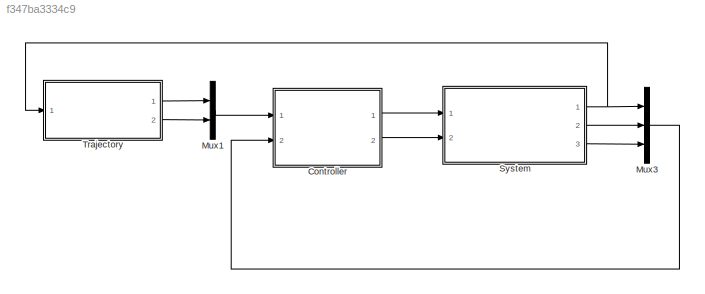
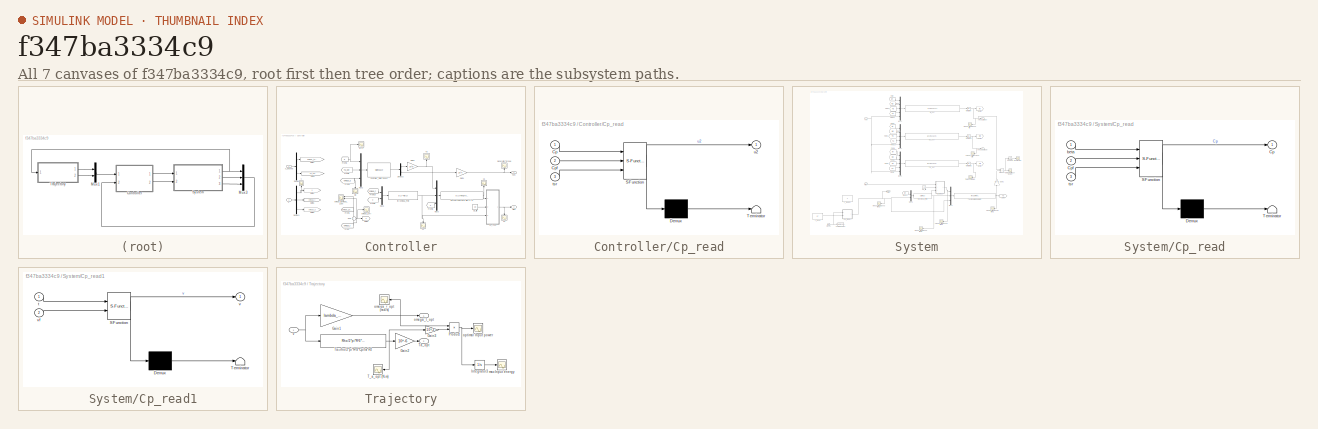
[diagram: thumbnail index - all 7 canvases of the model, root first then tree order]
MODEL slx_f347ba3334c9
KIND model
CONFIG AbsTol = auto
CONFIG FixedStep = auto
CONFIG MaxStep = auto
CONFIG MinStep = auto
CONFIG RelTol = 1e-3
CONFIG SampleTimeConstraint = Unconstrained
CONFIG Solver = VariableStepAuto
CONFIG SolverMode = Auto
CONFIG SolverName = VariableStepAuto
CONFIG StartTime = 0.0
CONFIG StopTime = 600
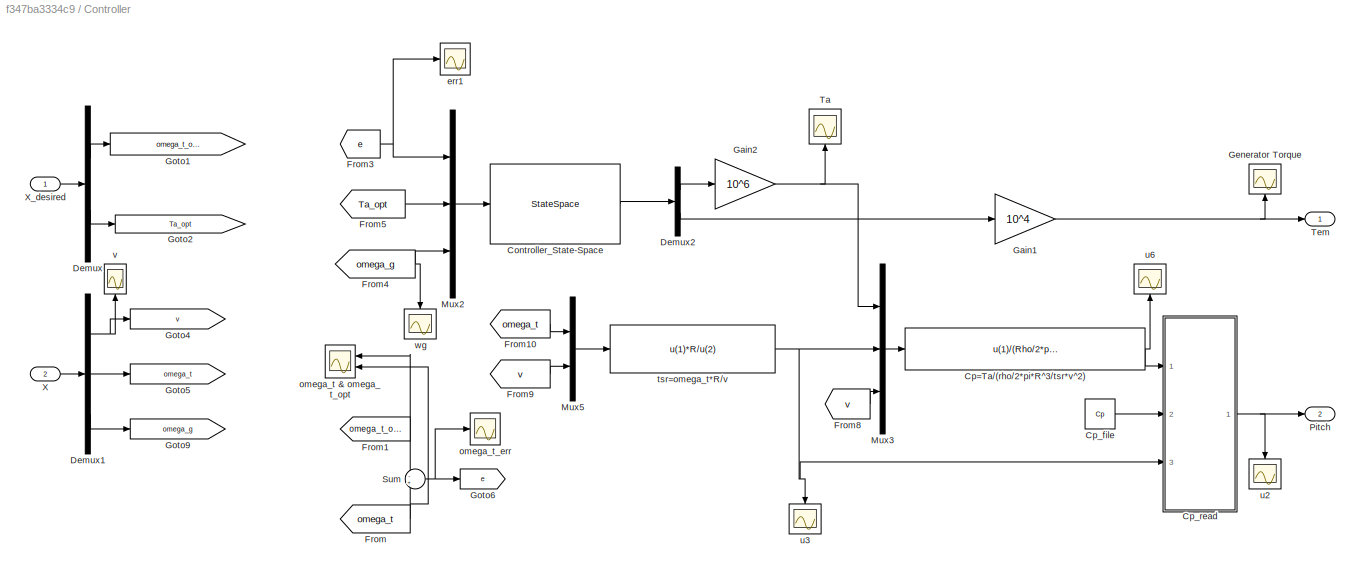
BLOCK [SubSystem] Controller
  Ports = [2, 2]
  RequestExecContextInheritance = off
  Variant = off
BLOCK [StateSpace] Controller/Controller_State-Space
  A = A
  B = B
  C = C
  D = D
  Ports = [1, 1]
  X0 = 0
BLOCK [Fcn] Controller/Cp=Ta//(rho//2*pi*R^3//tsr*v^2)
  Expr = u(1)/(Rho/2*pi*R^3/u(2)*u(3)^2)
BLOCK [Constant] Controller/Cp_file
  Value = Cp
BLOCK [SubSystem] Controller/Cp_read
  ErrorFcn = Stateflow.Translate.translate
  PermitHierarchicalResolution = ExplicitOnly
  Ports = [3, 1]
  RequestExecContextInheritance = off
  SFBlockType = MATLAB Function
  TreatAsAtomicUnit = on
  Variant = off
BLOCK [Demux] Controller/Cp_read/ Demux 
  Outputs = 1
  Ports = [1, 1]
BLOCK [S-Function] Controller/Cp_read/ SFunction 
  EnableBusSupport = on
  FunctionName = sf_sfun
  PortCounts = [3 2]
  Ports = [3, 2]
  SFunctionDeploymentMode = off
  Tag = Stateflow S-Function img_Closedloop 1
BLOCK [Terminator] Controller/Cp_read/ Terminator 
BLOCK [Inport] Controller/Cp_read/Cp
  IconDisplay = Port number
BLOCK [Inport] Controller/Cp_read/Cpf
  IconDisplay = Port number
  Port = 2
BLOCK [Inport] Controller/Cp_read/tsr
  IconDisplay = Port number
  Port = 3
BLOCK [Outport] Controller/Cp_read/u2
  IconDisplay = Port number
BLOCK [Demux] Controller/Demux
  DisplayOption = bar
  Outputs = 2
  Ports = [1, 2]
BLOCK [Demux] Controller/Demux1
  DisplayOption = bar
  Outputs = 3
  Ports = [1, 3]
BLOCK [Demux] Controller/Demux2
  DisplayOption = bar
  Outputs = 2
  Ports = [1, 2]
BLOCK [From] Controller/From
  GotoTag = omega_t
BLOCK [From] Controller/From1
  GotoTag = omega_t_opt
BLOCK [From] Controller/From10
  GotoTag = omega_t
BLOCK [From] Controller/From3
  GotoTag = e
BLOCK [From] Controller/From4
  GotoTag = omega_g
BLOCK [From] Controller/From5
  GotoTag = Ta_opt
BLOCK [From] Controller/From8
  GotoTag = v
BLOCK [From] Controller/From9
  GotoTag = v
BLOCK [Gain] Controller/Gain1
  Gain = 10^4
  OutDataTypeStr = Inherit: Inherit via internal rule
  ParamDataTypeStr = Inherit: Inherit via internal rule
  SaturateOnIntegerOverflow = off
BLOCK [Gain] Controller/Gain2
  Gain = 10^6
  OutDataTypeStr = Inherit: Inherit via internal rule
  ParamDataTypeStr = Inherit: Inherit via internal rule
  SaturateOnIntegerOverflow = off
BLOCK [Scope] Controller/Generator Torque
  Ports = [1]
  ScopeSpecificationString = Simulink.scopes.TimeScopeBlockCfg('CurrentConfiguration', extmgr.ConfigurationSet(extmgr.Configuration('Core','General UI',true,'FigureColor',[1 1 1]),extmgr.Configuration('Core','Source UI',true),extmgr.Configuration('Sources','WiredSimulink',true,'DataLoggingVariableName','ScopeData4'),extmgr.Configuration('Visuals','Time Domain',true,'SerializedDisplays',{struct('MinYLimReal','-9647.98106','Max...<+1636ch>
BLOCK [Goto] Controller/Goto1
  GotoTag = omega_t_opt
BLOCK [Goto] Controller/Goto2
  GotoTag = Ta_opt
BLOCK [Goto] Controller/Goto4
  GotoTag = v
BLOCK [Goto] Controller/Goto5
  GotoTag = omega_t
BLOCK [Goto] Controller/Goto6
  GotoTag = e
BLOCK [Goto] Controller/Goto9
  GotoTag = omega_g
BLOCK [Mux] Controller/Mux2
  DisplayOption = bar
  Inputs = 3
  Ports = [3, 1]
BLOCK [Mux] Controller/Mux3
  DisplayOption = bar
  Inputs = 3
  Ports = [3, 1]
BLOCK [Mux] Controller/Mux5
  DisplayOption = bar
  Inputs = 2
  Ports = [2, 1]
BLOCK [Outport] Controller/Pitch
  IconDisplay = Port number
  Port = 2
BLOCK [Sum] Controller/Sum
  IconShape = round
  InputSameDT = off
  Inputs = -+
  OutDataTypeStr = Inherit: Inherit via internal rule
  Ports = [2, 1]
  SaturateOnIntegerOverflow = off
BLOCK [Scope] Controller/Ta
  Ports = [1]
  ScopeSpecificationString = Simulink.scopes.TimeScopeBlockCfg('CurrentConfiguration', extmgr.ConfigurationSet(extmgr.Configuration('Core','General UI',true),extmgr.Configuration('Core','Source UI',true),extmgr.Configuration('Sources','WiredSimulink',true,'DataLoggingVariableName','ScopeData1'),extmgr.Configuration('Visuals','Time Domain',true,'SerializedDisplays',{struct('MinYLimReal','-769112.10444','MaxYLimReal','1735851.6...<+1831ch>
BLOCK [Outport] Controller/Tem
  IconDisplay = Port number
BLOCK [Inport] Controller/X
  IconDisplay = Port number
  Port = 2
BLOCK [Inport] Controller/X_desired
  IconDisplay = Port number
BLOCK [Scope] Controller/err1
  Ports = [1]
  ScopeSpecificationString = Simulink.scopes.TimeScopeBlockCfg('CurrentConfiguration', extmgr.ConfigurationSet(extmgr.Configuration('Core','General UI',true,'FigureColor',[1 1 1]),extmgr.Configuration('Core','Source UI',true),extmgr.Configuration('Sources','WiredSimulink',true,'DataLoggingVariableName','ScopeData12'),extmgr.Configuration('Visuals','Time Domain',true,'SerializedDisplays',{struct('MinYLimReal','-1.72296','MaxYL...<+1582ch>
BLOCK [Scope] Controller/omega_t & omega_t_opt
  NumInputPorts = 2
  Ports = [2]
  ScopeSpecificationString = Simulink.scopes.TimeScopeBlockCfg('CurrentConfiguration', extmgr.ConfigurationSet(extmgr.Configuration('Core','General UI',true,'FigureColor',[1 1 1]),extmgr.Configuration('Core','Source UI',true),extmgr.Configuration('Sources','WiredSimulink',true,'DataLoggingVariableName','ScopeData3'),extmgr.Configuration('Visuals','Time Domain',true,'SerializedDisplays',{struct('MinYLimReal','-0.16757','MaxYLi...<+1664ch>
BLOCK [Scope] Controller/omega_t_err
  Ports = [1]
  ScopeSpecificationString = Simulink.scopes.TimeScopeBlockCfg('CurrentConfiguration', extmgr.ConfigurationSet(extmgr.Configuration('Core','General UI',true,'FigureColor',[1 1 1]),extmgr.Configuration('Core','Source UI',true),extmgr.Configuration('Sources','WiredSimulink',true,'DataLoggingVariableName','ScopeData2'),extmgr.Configuration('Visuals','Time Domain',true,'SerializedDisplays',{struct('MinYLimReal','-1.76378','MaxYLi...<+1607ch>
BLOCK [Fcn] Controller/tsr=omega_t*R//v
  Expr = u(1)*R/u(2)
BLOCK [Scope] Controller/u2
  Ports = [1]
  ScopeSpecificationString = Simulink.scopes.TimeScopeBlockCfg('CurrentConfiguration', extmgr.ConfigurationSet(extmgr.Configuration('Core','General UI',true,'FigureColor',[1 1 1]),extmgr.Configuration('Core','Source UI',true),extmgr.Configuration('Sources','WiredSimulink',true,'DataLoggingVariableName','ScopeData5'),extmgr.Configuration('Visuals','Time Domain',true,'SerializedDisplays',{struct('MinYLimReal','1.00000','MaxYLim...<+1857ch>
BLOCK [Scope] Controller/u3
  Ports = [1]
  ScopeSpecificationString = Simulink.scopes.TimeScopeBlockCfg('CurrentConfiguration', extmgr.ConfigurationSet(extmgr.Configuration('Core','General UI',true),extmgr.Configuration('Core','Source UI',true),extmgr.Configuration('Sources','WiredSimulink',true,'DataLoggingVariableName','ScopeData6'),extmgr.Configuration('Visuals','Time Domain',true,'SerializedDisplays',{struct('MinYLimReal','-0.70283','MaxYLimReal','11.21178','YLa...<+1732ch>
BLOCK [Scope] Controller/u6
  Ports = [1]
  ScopeSpecificationString = Simulink.scopes.TimeScopeBlockCfg('CurrentConfiguration', extmgr.ConfigurationSet(extmgr.Configuration('Core','General UI',true,'FigureColor',[1 1 1]),extmgr.Configuration('Core','Source UI',true),extmgr.Configuration('Sources','WiredSimulink',true,'DataLoggingVariableName','ScopeData8'),extmgr.Configuration('Visuals','Time Domain',true,'SerializedDisplays',{struct('MinYLimReal','-0.45951','MaxYLi...<+1857ch>
BLOCK [Scope] Controller/v
  Ports = [1]
  ScopeSpecificationString = Simulink.scopes.TimeScopeBlockCfg('CurrentConfiguration', extmgr.ConfigurationSet(extmgr.Configuration('Core','General UI',true),extmgr.Configuration('Core','Source UI',true),extmgr.Configuration('Sources','WiredSimulink',true,'DataLoggingVariableName','ScopeData9'),extmgr.Configuration('Visuals','Time Domain',true,'SerializedDisplays',{struct('MinYLimReal','4.00000','MaxYLimReal','6.00000','YLabe...<+1390ch>
BLOCK [Scope] Controller/wg
  Ports = [1]
  ScopeSpecificationString = Simulink.scopes.TimeScopeBlockCfg('CurrentConfiguration', extmgr.ConfigurationSet(extmgr.Configuration('Core','General UI',true,'FigureColor',[1 1 1]),extmgr.Configuration('Core','Source UI',true),extmgr.Configuration('Sources','WiredSimulink',true,'DataLoggingVariableName','ScopeData1'),extmgr.Configuration('Visuals','Time Domain',true,'SerializedDisplays',{struct('MinYLimReal','-14.69631','MaxYL...<+1897ch>
BLOCK [Mux] Mux1
  DisplayOption = bar
  Inputs = 2
  Ports = [2, 1]
BLOCK [Mux] Mux3
  DisplayOption = bar
  Inputs = 3
  Ports = [3, 1]
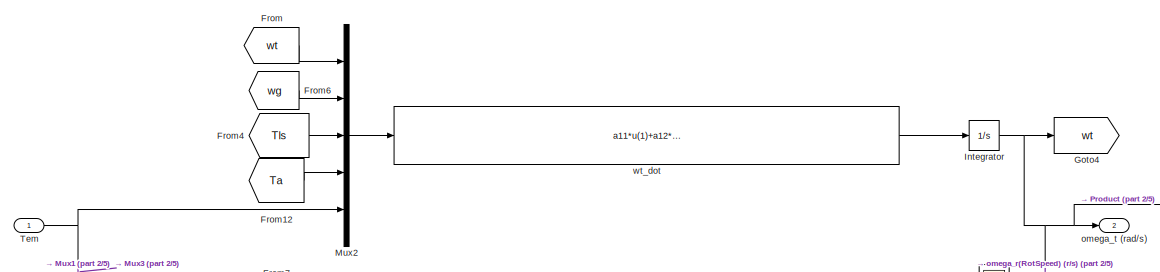
[diagram: System - part 1/5, top center region]
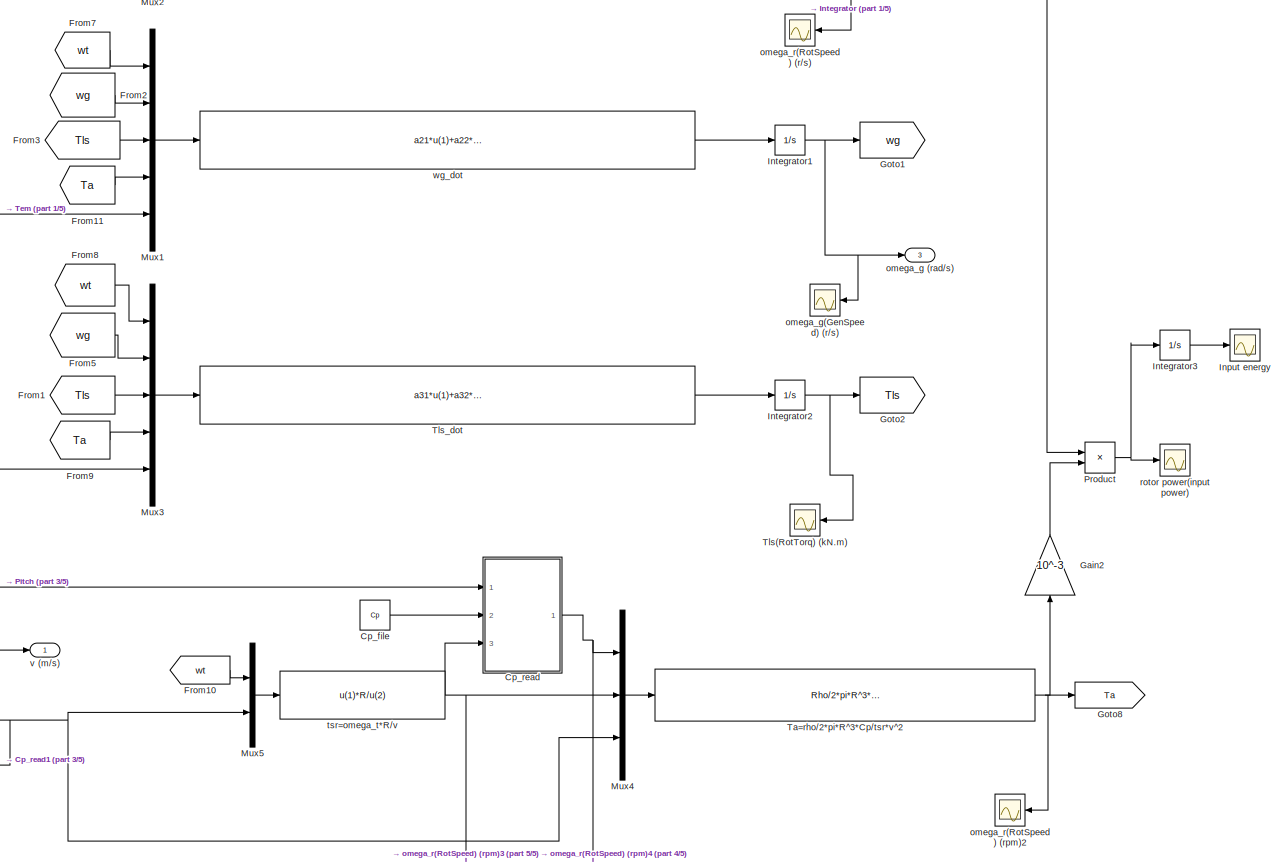
[diagram: System - part 2/5, middle right region]
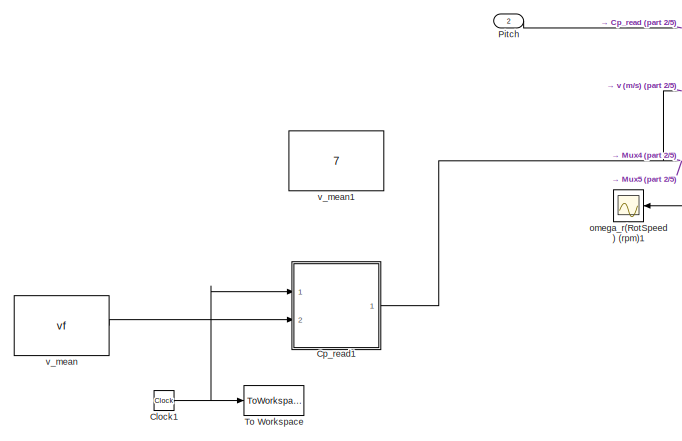
[diagram: System - part 3/5, bottom left region]
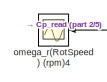
[diagram: System - part 4/5, bottom center region]
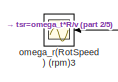
[diagram: System - part 5/5, bottom center region]
BLOCK [SubSystem] System
  Ports = [2, 3]
  RequestExecContextInheritance = off
  Variant = off
BLOCK [Clock] System/Clock1
BLOCK [Constant] System/Cp_file
  Value = Cp
BLOCK [SubSystem] System/Cp_read
  ErrorFcn = Stateflow.Translate.translate
  PermitHierarchicalResolution = ExplicitOnly
  Ports = [3, 1]
  RequestExecContextInheritance = off
  SFBlockType = MATLAB Function
  TreatAsAtomicUnit = on
  Variant = off
BLOCK [Demux] System/Cp_read/ Demux 
  Outputs = 1
  Ports = [1, 1]
BLOCK [S-Function] System/Cp_read/ SFunction 
  EnableBusSupport = on
  FunctionName = sf_sfun
  PortCounts = [3 2]
  Ports = [3, 2]
  SFunctionDeploymentMode = off
  Tag = Stateflow S-Function img_Closedloop 3
BLOCK [Terminator] System/Cp_read/ Terminator 
BLOCK [Outport] System/Cp_read/Cp
  IconDisplay = Port number
BLOCK [Inport] System/Cp_read/Cpf
  IconDisplay = Port number
  Port = 2
BLOCK [Inport] System/Cp_read/beta
  IconDisplay = Port number
BLOCK [Inport] System/Cp_read/tsr
  IconDisplay = Port number
  Port = 3
BLOCK [SubSystem] System/Cp_read1
  ErrorFcn = Stateflow.Translate.translate
  PermitHierarchicalResolution = ExplicitOnly
  Ports = [2, 1]
  RequestExecContextInheritance = off
  SFBlockType = MATLAB Function
  TreatAsAtomicUnit = on
  Variant = off
BLOCK [Demux] System/Cp_read1/ Demux 
  Outputs = 1
  Ports = [1, 1]
BLOCK [S-Function] System/Cp_read1/ SFunction 
  EnableBusSupport = on
  FunctionName = sf_sfun
  PortCounts = [2 2]
  Ports = [2, 2]
  SFunctionDeploymentMode = off
  Tag = Stateflow S-Function img_Closedloop 2
BLOCK [Terminator] System/Cp_read1/ Terminator 
BLOCK [Inport] System/Cp_read1/t
  IconDisplay = Port number
BLOCK [Outport] System/Cp_read1/v
  IconDisplay = Port number
BLOCK [Inport] System/Cp_read1/vf
  IconDisplay = Port number
  Port = 2
BLOCK [From] System/From
  GotoTag = wt
BLOCK [From] System/From1
  GotoTag = Tls
BLOCK [From] System/From10
  GotoTag = wt
BLOCK [From] System/From11
  GotoTag = Ta
BLOCK [From] System/From12
  GotoTag = Ta
BLOCK [From] System/From2
  GotoTag = wg
BLOCK [From] System/From3
  GotoTag = Tls
BLOCK [From] System/From4
  GotoTag = Tls
BLOCK [From] System/From5
  GotoTag = wg
BLOCK [From] System/From6
  GotoTag = wg
BLOCK [From] System/From7
  GotoTag = wt
BLOCK [From] System/From8
  GotoTag = wt
BLOCK [From] System/From9
  GotoTag = Ta
BLOCK [Gain] System/Gain2
  Gain = 10^-3
  OutDataTypeStr = Inherit: Inherit via internal rule
  ParamDataTypeStr = Inherit: Inherit via internal rule
  SaturateOnIntegerOverflow = off
BLOCK [Goto] System/Goto1
  GotoTag = wg
BLOCK [Goto] System/Goto2
  GotoTag = Tls
BLOCK [Goto] System/Goto4
  GotoTag = wt
BLOCK [Goto] System/Goto8
  GotoTag = Ta
BLOCK [Scope] System/Input energy
  Ports = [1]
  ScopeSpecificationString = Simulink.scopes.TimeScopeBlockCfg('CurrentConfiguration', extmgr.ConfigurationSet(extmgr.Configuration('Core','General UI',true,'FigureColor',[1 1 1]),extmgr.Configuration('Core','Source UI',true),extmgr.Configuration('Sources','WiredSimulink',true,'DataLoggingVariableName','ScopeData3'),extmgr.Configuration('Visuals','Time Domain',true,'SerializedDisplays',{struct('MinYLimReal','-34385.38567','Ma...<+1923ch>
BLOCK [Integrator] System/Integrator
  InitialCondition = 2
  Ports = [1, 1]
BLOCK [Integrator] System/Integrator1
  InitialCondition = 2
  Ports = [1, 1]
BLOCK [Integrator] System/Integrator2
  Ports = [1, 1]
BLOCK [Integrator] System/Integrator3
  Ports = [1, 1]
BLOCK [Mux] System/Mux1
  DisplayOption = bar
  Inputs = 5
  Ports = [5, 1]
BLOCK [Mux] System/Mux2
  DisplayOption = bar
  Inputs = 5
  Ports = [5, 1]
BLOCK [Mux] System/Mux3
  DisplayOption = bar
  Inputs = 5
  Ports = [5, 1]
BLOCK [Mux] System/Mux4
  DisplayOption = bar
  Inputs = 3
  Ports = [3, 1]
BLOCK [Mux] System/Mux5
  DisplayOption = bar
  Inputs = 2
  Ports = [2, 1]
BLOCK [Inport] System/Pitch
  IconDisplay = Port number
  Port = 2
BLOCK [Product] System/Product
  InputSameDT = off
  OutDataTypeStr = Inherit: Inherit via internal rule
  Ports = [2, 1]
  RndMeth = Floor
  SaturateOnIntegerOverflow = off
BLOCK [Fcn] System/Ta=rho//2*pi*R^3*Cp//tsr*v^2
  Expr = Rho/2*pi*R^3*u(1)/u(2)*u(3)^2
BLOCK [Inport] System/Tem
  IconDisplay = Port number
BLOCK [Scope] System/Tls(RotTorq) (kN.m)
  Ports = [1]
  ScopeSpecificationString = Simulink.scopes.TimeScopeBlockCfg('CurrentConfiguration', extmgr.ConfigurationSet(extmgr.Configuration('Core','General UI',true),extmgr.Configuration('Core','Source UI',true),extmgr.Configuration('Sources','WiredSimulink',true,'DataLoggingSaveFormat','StructureWithTime','DataLoggingDecimation','1','DataLoggingDecimateData',true,'DataLoggingVariableName','ScopeData10'),extmgr.Configuration('Visuals...<+2038ch>
BLOCK [Fcn] System/Tls_dot
  Expr = a31*u(1)+a32*u(2)+a33*u(3)+b31*u(4)+b32*u(5)
BLOCK [ToWorkspace] System/To Workspace
  MaxDataPoints = inf
  Ports = [1]
  SampleTime = -1
  VariableName = Time
BLOCK [Outport] System/omega_g (rad//s)
  IconDisplay = Port number
  Port = 3
BLOCK [Scope] System/omega_g(GenSpeed) (r//s)
  Ports = [1]
  ScopeSpecificationString = Simulink.scopes.TimeScopeBlockCfg('CurrentConfiguration', extmgr.ConfigurationSet(extmgr.Configuration('Core','General UI',true),extmgr.Configuration('Core','Source UI',true),extmgr.Configuration('Sources','WiredSimulink',true,'DataLoggingSaveFormat','StructureWithTime','DataLoggingDecimation','1','DataLoggingDecimateData',true,'DataLoggingVariableName','ScopeData14'),extmgr.Configuration('Visuals...<+2002ch>
BLOCK [Scope] System/omega_r(RotSpeed) (r//s)
  Ports = [1]
  ScopeSpecificationString = Simulink.scopes.TimeScopeBlockCfg('CurrentConfiguration', extmgr.ConfigurationSet(extmgr.Configuration('Core','General UI',true,'FigureColor',[1 1 1]),extmgr.Configuration('Core','Source UI',true),extmgr.Configuration('Sources','WiredSimulink',true,'DataLoggingSaveFormat','StructureWithTime','DataLoggingDecimation','1','DataLoggingDecimateData',true),extmgr.Configuration('Visuals','Time Domain',tr...<+2049ch>
BLOCK [Scope] System/omega_r(RotSpeed) (rpm)1
  Ports = [1]
  ScopeSpecificationString = Simulink.scopes.TimeScopeBlockCfg('CurrentConfiguration', extmgr.ConfigurationSet(extmgr.Configuration('Core','General UI',true),extmgr.Configuration('Core','Source UI',true),extmgr.Configuration('Sources','WiredSimulink',true,'DataLoggingSaveFormat','StructureWithTime','DataLoggingDecimation','1','DataLoggingDecimateData',true,'DataLoggingVariableName','ScopeData1'),extmgr.Configuration('Visuals'...<+1693ch>
BLOCK [Scope] System/omega_r(RotSpeed) (rpm)2
  Ports = [1]
  ScopeSpecificationString = Simulink.scopes.TimeScopeBlockCfg('CurrentConfiguration', extmgr.ConfigurationSet(extmgr.Configuration('Core','General UI',true),extmgr.Configuration('Core','Source UI',true),extmgr.Configuration('Sources','WiredSimulink',true,'DataLoggingVariableName','ScopeData1'),extmgr.Configuration('Visuals','Time Domain',true,'SerializedDisplays',{struct('MinYLimReal','-7772.84519','MaxYLimReal','69955.60675...<+1440ch>
BLOCK [Scope] System/omega_r(RotSpeed) (rpm)3
  Ports = [1]
  ScopeSpecificationString = Simulink.scopes.TimeScopeBlockCfg('CurrentConfiguration', extmgr.ConfigurationSet(extmgr.Configuration('Core','General UI',true),extmgr.Configuration('Core','Source UI',true),extmgr.Configuration('Sources','WiredSimulink',true,'DataLoggingVariableName','ScopeData2'),extmgr.Configuration('Visuals','Time Domain',true,'SerializedDisplays',{struct('MinYLimReal','4.84126','MaxYLimReal','70.46446','YLab...<+1405ch>
BLOCK [Scope] System/omega_r(RotSpeed) (rpm)4
  Ports = [1]
  ScopeSpecificationString = Simulink.scopes.TimeScopeBlockCfg('CurrentConfiguration', extmgr.ConfigurationSet(extmgr.Configuration('Core','General UI',true),extmgr.Configuration('Core','Source UI',true),extmgr.Configuration('Sources','WiredSimulink',true,'DataLoggingVariableName','ScopeData3'),extmgr.Configuration('Visuals','Time Domain',true,'SerializedDisplays',{struct('MinYLimReal','-0.04298','MaxYLimReal','0.38678','YLab...<+1395ch>
BLOCK [Outport] System/omega_t (rad//s)
  IconDisplay = Port number
  Port = 2
BLOCK [Scope] System/rotor power(input power)
  Ports = [1]
  ScopeSpecificationString = Simulink.scopes.TimeScopeBlockCfg('CurrentConfiguration', extmgr.ConfigurationSet(extmgr.Configuration('Core','General UI',true,'FigureColor',[1 1 1]),extmgr.Configuration('Core','Source UI',true),extmgr.Configuration('Sources','WiredSimulink',true,'DataLoggingVariableName','ScopeData1'),extmgr.Configuration('Visuals','Time Domain',true,'SerializedDisplays',{struct('MinYLimReal','-194.82153','MaxY...<+1625ch>
BLOCK [Fcn] System/tsr=omega_t*R//v
  Expr = u(1)*R/u(2)
BLOCK [Outport] System/v (m//s)
  IconDisplay = Port number
BLOCK [Constant] System/v_mean
  Value = vf
BLOCK [Constant] System/v_mean1
  Value = 7
BLOCK [Fcn] System/wg_dot
  Expr = a21*u(1)+a22*u(2)+a23*u(3)+b21*u(4)+b22*u(5)
BLOCK [Fcn] System/wt_dot
  Expr = a11*u(1)+a12*u(2)+a13*u(3)+b11*u(4)+b12*u(5)
BLOCK [SubSystem] Trajectory
  Ports = [1, 2]
  RequestExecContextInheritance = off
  Variant = off
BLOCK [Gain] Trajectory/Gain1
  Gain = lambda_opt/R
  OutDataTypeStr = Inherit: Inherit via internal rule
  ParamDataTypeStr = Inherit: Inherit via internal rule
  SaturateOnIntegerOverflow = off
BLOCK [Gain] Trajectory/Gain2
  Gain = 10^-6
  OutDataTypeStr = Inherit: Inherit via internal rule
  ParamDataTypeStr = Inherit: Inherit via internal rule
  SaturateOnIntegerOverflow = off
BLOCK [Gain] Trajectory/Gain3
  Gain = 10^-3
  OutDataTypeStr = Inherit: Inherit via internal rule
  ParamDataTypeStr = Inherit: Inherit via internal rule
  SaturateOnIntegerOverflow = off
BLOCK [Integrator] Trajectory/Integrator3
  Ports = [1, 1]
BLOCK [Product] Trajectory/Product
  InputSameDT = off
  OutDataTypeStr = Inherit: Inherit via internal rule
  Ports = [2, 1]
  RndMeth = Floor
  SaturateOnIntegerOverflow = off
BLOCK [Scope] Trajectory/T_a_opt (N.m)
  Ports = [1]
  ScopeSpecificationString = Simulink.scopes.TimeScopeBlockCfg('CurrentConfiguration', extmgr.ConfigurationSet(extmgr.Configuration('Core','General UI',true),extmgr.Configuration('Core','Source UI',true),extmgr.Configuration('Sources','WiredSimulink',true,'DataLoggingVariableName','ScopeData11'),extmgr.Configuration('Visuals','Time Domain',true,'SerializedDisplays',{struct('MinYLimReal','-61127.46765','MaxYLimReal','799037.77...<+1707ch>
BLOCK [Fcn] Trajectory/Ta=rho//2*pi*R^3*Cp//tsr*v^2
  Expr = Rho/2*pi*R^3*0.4857/7.1*u(1)^2
BLOCK [Outport] Trajectory/Ta_opt
  IconDisplay = Port number
  Port = 2
BLOCK [Scope] Trajectory/max Input energy
  Ports = [1]
  ScopeSpecificationString = Simulink.scopes.TimeScopeBlockCfg('CurrentConfiguration', extmgr.ConfigurationSet(extmgr.Configuration('Core','General UI',true,'FigureColor',[1 1 1]),extmgr.Configuration('Core','Source UI',true),extmgr.Configuration('Sources','WiredSimulink',true,'DataLoggingVariableName','ScopeData4'),extmgr.Configuration('Visuals','Time Domain',true,'SerializedDisplays',{struct('MinYLimReal','-35568.69665','Ma...<+1923ch>
BLOCK [Scope] Trajectory/omega_r_opt (rad//s)
  Ports = [1]
  ScopeSpecificationString = Simulink.scopes.TimeScopeBlockCfg('CurrentConfiguration', extmgr.ConfigurationSet(extmgr.Configuration('Core','General UI',true),extmgr.Configuration('Core','Source UI',true),extmgr.Configuration('Sources','WiredSimulink',true,'DataLoggingVariableName','ScopeData10'),extmgr.Configuration('Visuals','Time Domain',true,'SerializedDisplays',{struct('MinYLimReal','0.01429','MaxYLimReal','2.01429','YLab...<+1637ch>
BLOCK [Outport] Trajectory/omega_t_opt
  IconDisplay = Port number
BLOCK [Scope] Trajectory/optimal Input power
  Ports = [1]
  ScopeSpecificationString = Simulink.scopes.TimeScopeBlockCfg('CurrentConfiguration', extmgr.ConfigurationSet(extmgr.Configuration('Core','General UI',true,'FigureColor',[1 1 1]),extmgr.Configuration('Core','Source UI',true),extmgr.Configuration('Sources','WiredSimulink',true,'DataLoggingVariableName','ScopeData2'),extmgr.Configuration('Visuals','Time Domain',true,'SerializedDisplays',{struct('MinYLimReal','-191.29316','MaxY...<+1605ch>
BLOCK [Inport] Trajectory/v
  IconDisplay = Port number
LINE Controller/Controller_State-Space:1 -> Controller/Demux2:1
NET Controller/Cp=Ta//(rho//2*pi*R^3//tsr*v^2):1 -> Controller/Cp_read:1, Controller/u6:1
LINE Controller/Cp_file:1 -> Controller/Cp_read:2
NET Controller/Cp_read:1 -> Controller/Pitch:1, Controller/u2:1
NET Controller/Demux1:1 -> Controller/Goto4:1, Controller/v:1
LINE Controller/Demux1:2 -> Controller/Goto5:1
LINE Controller/Demux1:3 -> Controller/Goto9:1
LINE Controller/Demux2:1 -> Controller/Gain2:1
LINE Controller/Demux2:2 -> Controller/Gain1:1
LINE Controller/Demux:1 -> Controller/Goto1:1
LINE Controller/Demux:2 -> Controller/Goto2:1
LINE Controller/From10:1 -> Controller/Mux5:1
NET Controller/From1:1 -> Controller/Sum:1, Controller/omega_t & omega_t_opt:1
NET Controller/From3:1 -> Controller/Mux2:1, Controller/err1:1
NET Controller/From4:1 -> Controller/Mux2:3, Controller/wg:1
LINE Controller/From5:1 -> Controller/Mux2:2
LINE Controller/From8:1 -> Controller/Mux3:3
LINE Controller/From9:1 -> Controller/Mux5:2
NET Controller/From:1 -> Controller/Sum:2, Controller/omega_t & omega_t_opt:2
NET Controller/Gain1:1 -> Controller/Generator Torque:1, Controller/Tem:1
NET Controller/Gain2:1 -> Controller/Mux3:1, Controller/Ta:1
LINE Controller/Mux2:1 -> Controller/Controller_State-Space:1
LINE Controller/Mux3:1 -> Controller/Cp=Ta//(rho//2*pi*R^3//tsr*v^2):1
LINE Controller/Mux5:1 -> Controller/tsr=omega_t*R//v:1
NET Controller/Sum:1 -> Controller/Goto6:1, Controller/omega_t_err:1
LINE Controller/X:1 -> Controller/Demux1:1
LINE Controller/X_desired:1 -> Controller/Demux:1
NET Controller/tsr=omega_t*R//v:1 -> Controller/Cp_read:3, Controller/Mux3:2, Controller/u3:1
LINE Controller:1 -> System:1
LINE Controller:2 -> System:2
LINE Mux1:1 -> Controller:1
LINE Mux3:1 -> Controller:2
NET System/Clock1:1 -> System/Cp_read1:1, System/To Workspace:1
LINE System/Cp_file:1 -> System/Cp_read:2
NET System/Cp_read1:1 -> System/Mux4:3, System/Mux5:2, System/omega_r(RotSpeed) (rpm)1:1, System/v (m//s):1
NET System/Cp_read:1 -> System/Mux4:1, System/omega_r(RotSpeed) (rpm)4:1
LINE System/From10:1 -> System/Mux5:1
LINE System/From11:1 -> System/Mux1:4
LINE System/From12:1 -> System/Mux2:4
LINE System/From1:1 -> System/Mux3:3
LINE System/From2:1 -> System/Mux1:2
LINE System/From3:1 -> System/Mux1:3
LINE System/From4:1 -> System/Mux2:3
LINE System/From5:1 -> System/Mux3:2
LINE System/From6:1 -> System/Mux2:2
LINE System/From7:1 -> System/Mux1:1
LINE System/From8:1 -> System/Mux3:1
LINE System/From9:1 -> System/Mux3:4
LINE System/From:1 -> System/Mux2:1
LINE System/Gain2:1 -> System/Product:2
NET System/Integrator1:1 -> System/Goto1:1, System/omega_g (rad//s):1, System/omega_g(GenSpeed) (r//s):1
NET System/Integrator2:1 -> System/Goto2:1, System/Tls(RotTorq) (kN.m):1
LINE System/Integrator3:1 -> System/Input energy:1
NET System/Integrator:1 -> System/Goto4:1, System/Product:1, System/omega_r(RotSpeed) (r//s):1, System/omega_t (rad//s):1
LINE System/Mux1:1 -> System/wg_dot:1
LINE System/Mux2:1 -> System/wt_dot:1
LINE System/Mux3:1 -> System/Tls_dot:1
LINE System/Mux4:1 -> System/Ta=rho//2*pi*R^3*Cp//tsr*v^2:1
LINE System/Mux5:1 -> System/tsr=omega_t*R//v:1
LINE System/Pitch:1 -> System/Cp_read:1
NET System/Product:1 -> System/Integrator3:1, System/rotor power(input power):1
NET System/Ta=rho//2*pi*R^3*Cp//tsr*v^2:1 -> System/Gain2:1, System/Goto8:1, System/omega_r(RotSpeed) (rpm)2:1
NET System/Tem:1 -> System/Mux1:5, System/Mux2:5, System/Mux3:5
LINE System/Tls_dot:1 -> System/Integrator2:1
NET System/tsr=omega_t*R//v:1 -> System/Cp_read:3, System/Mux4:2, System/omega_r(RotSpeed) (rpm)3:1
LINE System/v_mean:1 -> System/Cp_read1:2
LINE System/wg_dot:1 -> System/Integrator1:1
LINE System/wt_dot:1 -> System/Integrator:1
NET System:1 -> Mux3:1, Trajectory:1
LINE System:2 -> Mux3:2
LINE System:3 -> Mux3:3
NET Trajectory/Gain1:1 -> Trajectory/Product:1, Trajectory/omega_r_opt (rad//s):1, Trajectory/omega_t_opt:1
LINE Trajectory/Gain2:1 -> Trajectory/Ta_opt:1
LINE Trajectory/Gain3:1 -> Trajectory/Product:2
LINE Trajectory/Integrator3:1 -> Trajectory/max Input energy:1
NET Trajectory/Product:1 -> Trajectory/Integrator3:1, Trajectory/optimal Input power:1
NET Trajectory/Ta=rho//2*pi*R^3*Cp//tsr*v^2:1 -> Trajectory/Gain2:1, Trajectory/Gain3:1, Trajectory/T_a_opt (N.m):1
NET Trajectory/v:1 -> Trajectory/Gain1:1, Trajectory/Ta=rho//2*pi*R^3*Cp//tsr*v^2:1
LINE Trajectory:1 -> Mux1:1
LINE Trajectory:2 -> Mux1:2
note: NET lines group one-source signal fan-out (src -> all destinations, sorted); 1:1 wires keep LINE
CHART Controller/Cp_read states=1 transitions=1
  STATE_LABEL 'eML_blk_kernel()'
  STATE_LABEL 'SCRIPT:\nfunction u2 = fcn(Cp,Cpf,tsr)\n    tsr=floor(tsr*10+0.5);\n    beta=2;\n    if (Cp>0) && (Cp<0.4857) && (tsr<20) && (tsr>0)\n        i=90;\n        while (Cp>Cpf(i,tsr))\n            i=i-1;\n            if i==0 \n                break; \n            end\n        end\n        if i~=0\n            p=(Cp-Cpf(i+1,tsr))/(Cpf(i,tsr)-Cpf(i+1,tsr));\n            beta=(i-p);\n        end\n    end\n    u2=beta;\nend'
CHART System/Cp_read1 states=1 transitions=1
  STATE_LABEL 'eML_blk_kernel()'
  STATE_LABEL 'SCRIPT:\nfunction v = fcn(t,vf)\n    v=vf(floor(0.5*t)+1);\nend'
CHART System/Cp_read states=1 transitions=1
  STATE_LABEL 'eML_blk_kernel()'
  STATE_LABEL 'SCRIPT:\nfunction Cp = fcn(beta,Cpf,tsr)\n\n    Cp=0;\n    if (beta>=0) && (beta<90) && (tsr<20) && (tsr>0.1)\n        beta1=floor(beta)+1;\n        tsr1=floor(tsr*10);\n        beta2=beta1+1;\n        tsr2=tsr1+1;\n        betap=beta-floor(beta);\n        tsrp=tsr*10-floor(tsr*10);\n        Cp1=Cpf(beta1,tsr1)+betap*(Cpf(beta2,tsr1)-Cpf(beta1,tsr1));\n        Cp2=Cpf(beta1,tsr2)+betap*(Cpf(beta2,tsr2)-Cpf(be...<+54ch>'
